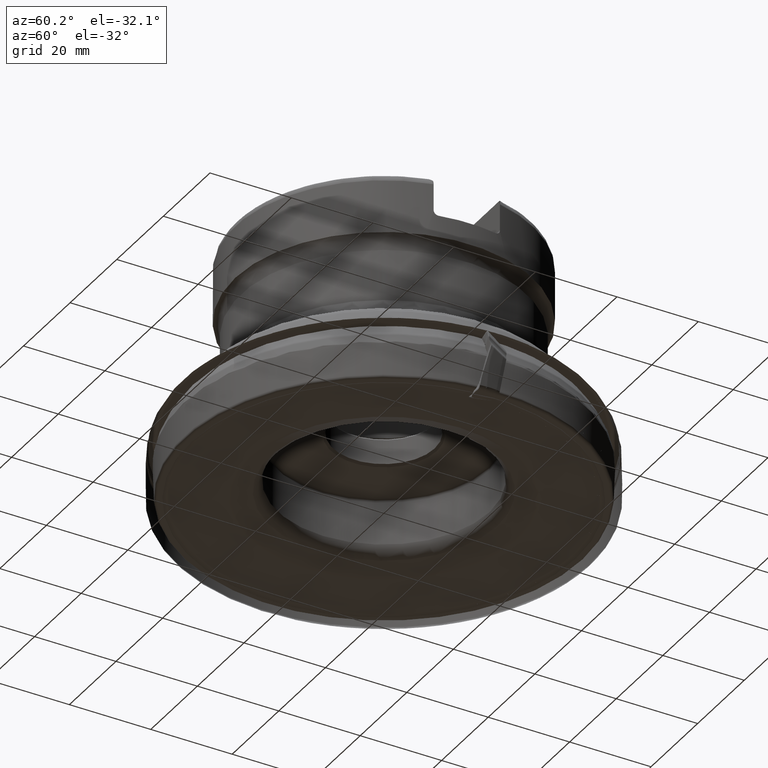
[diagram: clean part render]
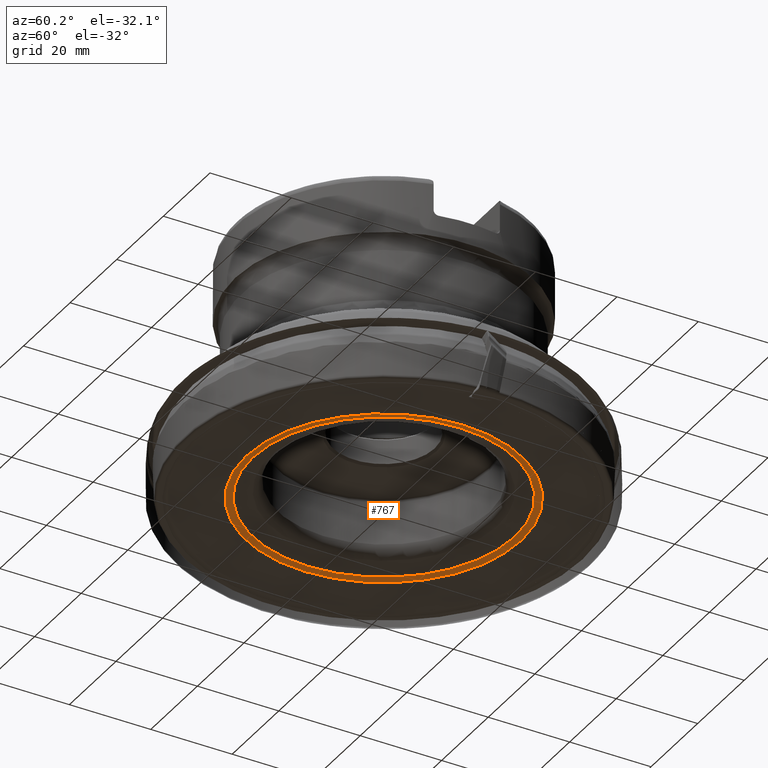
[diagram: same view with one face highlighted and labeled with its STEP entity id]
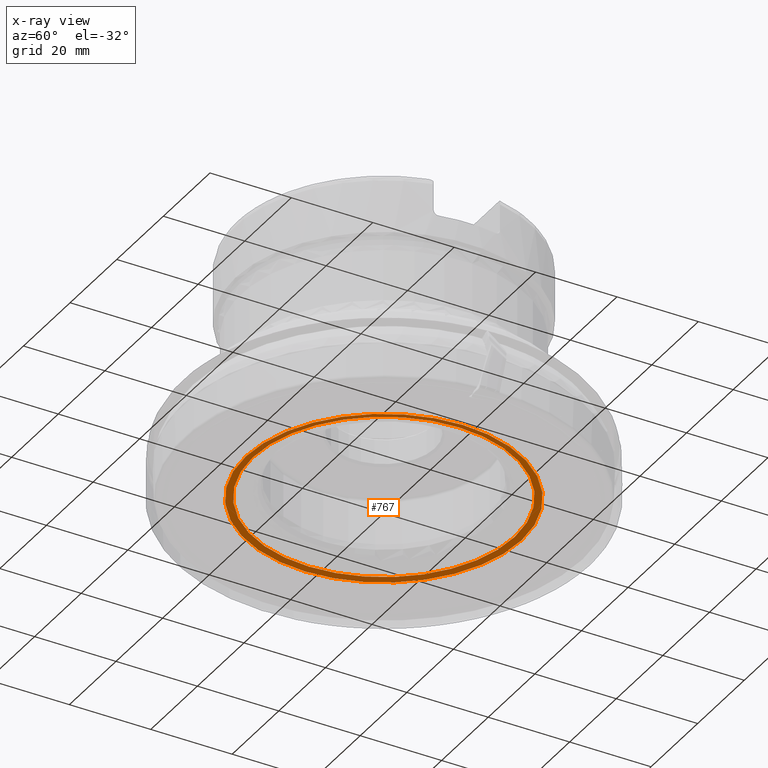
[diagram: x-ray of the same camera — body ghosted, the highlighted face saturated]
A machine part, auxiliary view. The second image highlights one B-rep face of the part: STEP entity #767.
The next image is the same camera in x-ray: the body ghosted, the highlighted face saturated — about 0% of this face is hidden behind the body in this view.
In plain terms, the highlighted toroidal blend (fillet) surface has major radius 33.8816 mm and minor (blend) radius 5 mm.
Its self-contained STEP definition (entity closure, byte-faithful):
#474=FACE_BOUND('',#1373,.T.);
#475=FACE_BOUND('',#1374,.T.);
#560=TOROIDAL_SURFACE('',#4679,33.8816349035423,5.);
#579=CIRCLE('',#4605,32.171534186914);
#581=CIRCLE('',#4608,33.8816349035423);
#767=ADVANCED_FACE('',(#474,#475),#560,.T.);
#1373=EDGE_LOOP('',(#1907));
#1374=EDGE_LOOP('',(#1908));
#1907=ORIENTED_EDGE('',*,*,#3499,.F.);
#1908=ORIENTED_EDGE('',*,*,#3501,.F.);
#3091=VERTEX_POINT('',#5806);
#3093=VERTEX_POINT('',#5811);
#3499=EDGE_CURVE('',#3091,#3091,#579,.T.);
#3501=EDGE_CURVE('',#3093,#3093,#581,.T.);
#4605=AXIS2_PLACEMENT_3D('',#5805,#4865,#4866);
#4608=AXIS2_PLACEMENT_3D('',#5810,#4871,#4872);
#4679=AXIS2_PLACEMENT_3D('',#5992,#5021,#5022);
#4865=DIRECTION('',(0.,-1.17145536458252E-15,-1.));
#4866=DIRECTION('',(0.,-1.,1.17278322455143E-15));
#4871=DIRECTION('',(0.,1.17145536458252E-15,1.));
#4872=DIRECTION('',(0.,1.,-1.17118904167227E-15));
#5021=DIRECTION('',(0.,-1.17145536458252E-15,-1.));
#5022=DIRECTION('',(0.,1.,-1.18231067771271E-15));
#5805=CARTESIAN_POINT('',(0.,1.99327452493683E-15,1.70153689607046));
#5806=CARTESIAN_POINT('',(0.,-32.171534186914,1.7015368960705));
#5810=CARTESIAN_POINT('',(0.,1.64003751041553E-15,1.4));
#5811=CARTESIAN_POINT('',(0.,33.8816349035423,1.39999999999996));
#5992=CARTESIAN_POINT('',(0.,7.49731433332815E-15,6.4));